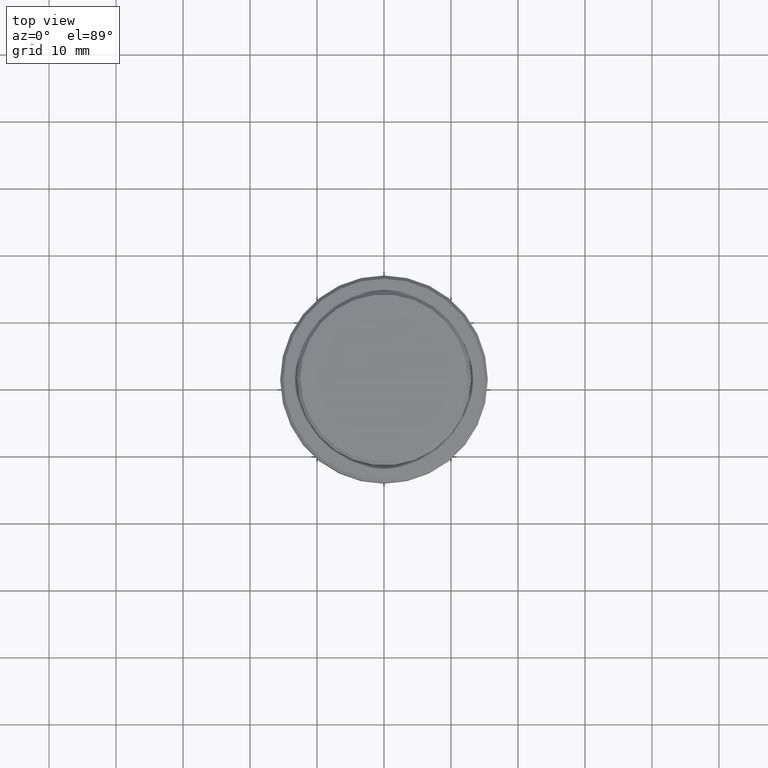
[diagram: clean part render]
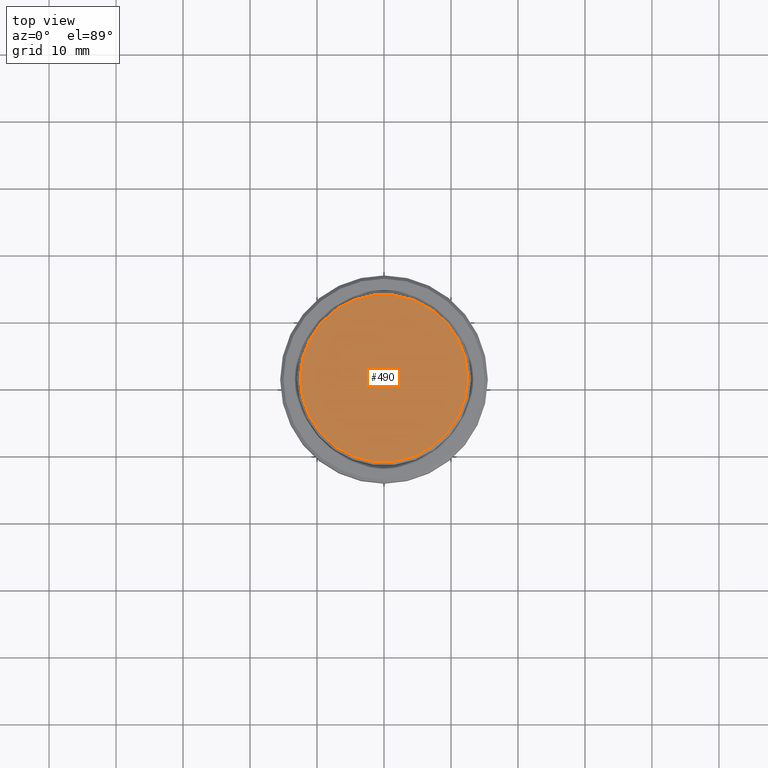
[diagram: same view with one face highlighted and labeled with its STEP entity id]
A machine part, top view. The second image highlights one B-rep face of the part: STEP entity #490.
In plain terms, the highlighted planar face has unit normal (0, -0, 1).
Its self-contained STEP definition (entity closure, byte-faithful):
#56 = AXIS2_PLACEMENT_3D ( 'NONE', #1157, #1380, #282 ) ;
#137 = PLANE ( 'NONE',  #682 ) ;
#143 = CARTESIAN_POINT ( 'NONE',  ( 0.000000000000000000, 0.000000000000000000, 0.000000000000000000 ) ) ;
#245 = EDGE_CURVE ( 'NONE', #299, #633, #398, .T. ) ;
#252 = DIRECTION ( 'NONE',  ( 0.000000000000000000, -0.000000000000000000, 1.000000000000000000 ) ) ;
#282 = DIRECTION ( 'NONE',  ( 1.000000000000000000, 0.000000000000000000, 0.000000000000000000 ) ) ;
#299 = VERTEX_POINT ( 'NONE', #945 ) ;
#398 = CIRCLE ( 'NONE', #56, 12.49999999999998579 ) ;
#477 = AXIS2_PLACEMENT_3D ( 'NONE', #753, #1190, #1413 ) ;
#490 = ADVANCED_FACE ( 'NONE', ( #1337 ), #137, .T. ) ;
#511 = ORIENTED_EDGE ( 'NONE', *, *, #889, .T. ) ;
#520 = CIRCLE ( 'NONE', #477, 12.49999999999998579 ) ;
#633 = VERTEX_POINT ( 'NONE', #1121 ) ;
#682 = AXIS2_PLACEMENT_3D ( 'NONE', #143, #252, #899 ) ;
#753 = CARTESIAN_POINT ( 'NONE',  ( 0.000000000000000000, 0.000000000000000000, 0.000000000000000000 ) ) ;
#889 = EDGE_CURVE ( 'NONE', #633, #299, #520, .T. ) ;
#899 = DIRECTION ( 'NONE',  ( 1.000000000000000000, 0.000000000000000000, 0.000000000000000000 ) ) ;
#945 = CARTESIAN_POINT ( 'NONE',  ( -12.49999999999998579, 0.000000000000000000, 0.000000000000000000 ) ) ;
#1121 = CARTESIAN_POINT ( 'NONE',  ( 12.49999999999998579, 1.561424668912874125E-15, 0.000000000000000000 ) ) ;
#1132 = EDGE_LOOP ( 'NONE', ( #1311, #511 ) ) ;
#1157 = CARTESIAN_POINT ( 'NONE',  ( 0.000000000000000000, 0.000000000000000000, 0.000000000000000000 ) ) ;
#1190 = DIRECTION ( 'NONE',  ( -0.000000000000000000, -0.000000000000000000, 1.000000000000000000 ) ) ;
#1311 = ORIENTED_EDGE ( 'NONE', *, *, #245, .T. ) ;
#1337 = FACE_OUTER_BOUND ( 'NONE', #1132, .T. ) ;
#1380 = DIRECTION ( 'NONE',  ( -0.000000000000000000, -0.000000000000000000, 1.000000000000000000 ) ) ;
#1413 = DIRECTION ( 'NONE',  ( 1.000000000000000000, 0.000000000000000000, 0.000000000000000000 ) ) ;